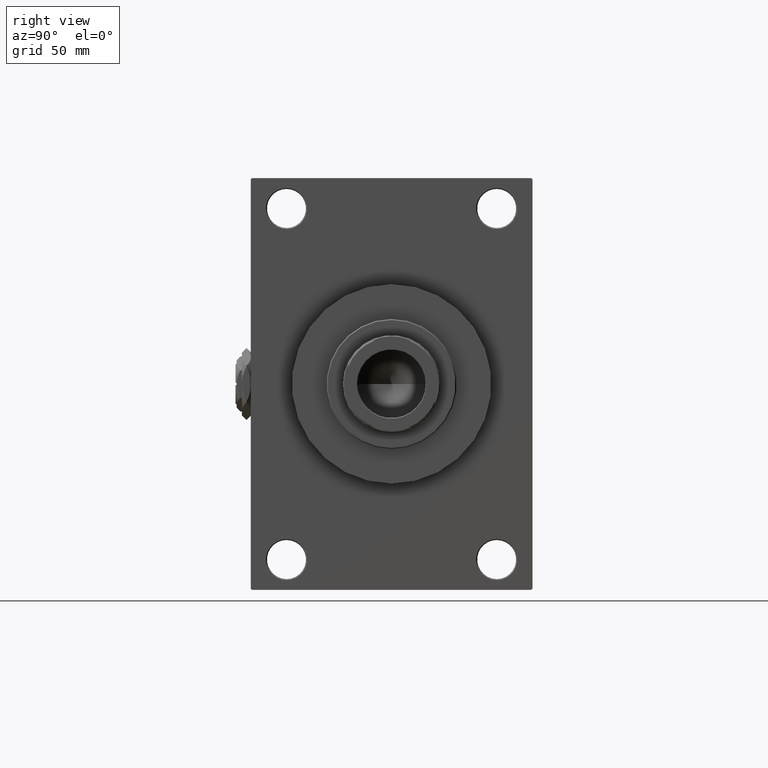
[diagram: clean part render]
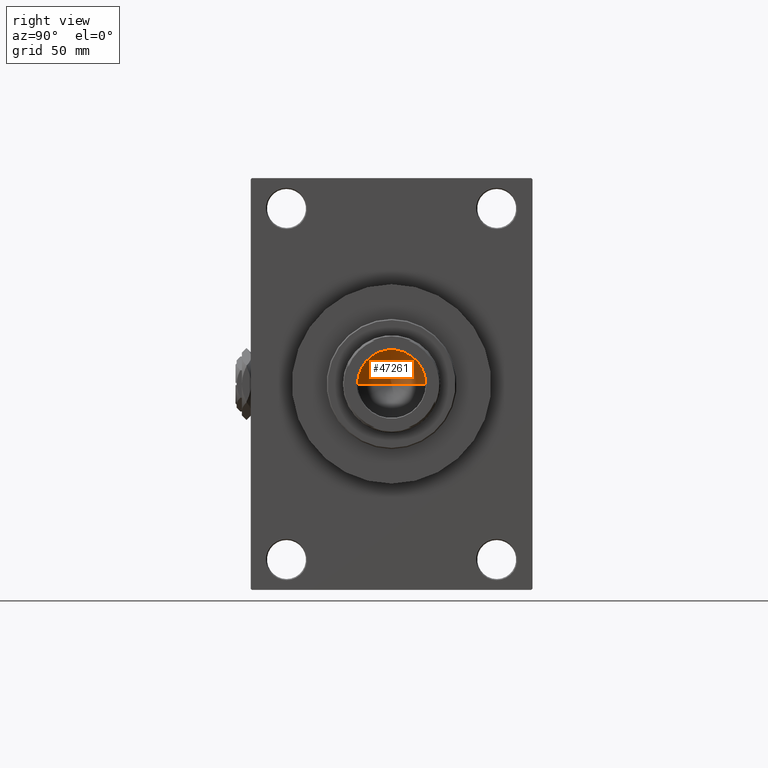
[diagram: same view with one face highlighted and labeled with its STEP entity id]
A machine part, right view. The second image highlights one B-rep face of the part: STEP entity #47261.
In plain terms, the highlighted conical surface has half-angle 59 deg.
Its self-contained STEP definition (entity closure, byte-faithful):
#1615 = EDGE_LOOP ( 'NONE', ( #28888, #20837, #18765 ) ) ;
#2845 = EDGE_CURVE ( 'NONE', #31467, #12713, #7001, .T. ) ;
#7001 = CIRCLE ( 'NONE', #43161, 15.74999999999998934 ) ;
#8692 = DIRECTION ( 'NONE',  ( 0.8571673007021115565, 0.000000000000000000, 0.5150380749100554878 ) ) ;
#8941 = FACE_OUTER_BOUND ( 'NONE', #1615, .T. ) ;
#8978 = DIRECTION ( 'NONE',  ( -0.8571673007021115565, 1.049727191138617710E-16, 0.5150380749100554878 ) ) ;
#9298 = CARTESIAN_POINT ( 'NONE',  ( -1.584115414415908206E-14, 0.000000000000000000, 113.5364452503159214 ) ) ;
#12713 = VERTEX_POINT ( 'NONE', #16659 ) ;
#16659 = CARTESIAN_POINT ( 'NONE',  ( 15.74999999999998934, 0.000000000000000000, 123.0000000000000142 ) ) ;
#17031 = LINE ( 'NONE', #39708, #49136 ) ;
#18765 = ORIENTED_EDGE ( 'NONE', *, *, #2845, .T. ) ;
#20271 = CARTESIAN_POINT ( 'NONE',  ( 0.000000000000000000, 0.000000000000000000, 123.0000000000000142 ) ) ;
#20430 = DIRECTION ( 'NONE',  ( 1.000000000000000000, 0.000000000000000000, 0.000000000000000000 ) ) ;
#20837 = ORIENTED_EDGE ( 'NONE', *, *, #22537, .T. ) ;
#21663 = AXIS2_PLACEMENT_3D ( 'NONE', #20271, #43949, #24288 ) ;
#22537 = EDGE_CURVE ( 'NONE', #24197, #31467, #17031, .T. ) ;
#24197 = VERTEX_POINT ( 'NONE', #9298 ) ;
#24288 = DIRECTION ( 'NONE',  ( 1.000000000000000000, 0.000000000000000000, 0.000000000000000000 ) ) ;
#24950 = DIRECTION ( 'NONE',  ( -0.000000000000000000, -0.000000000000000000, 1.000000000000000000 ) ) ;
#27564 = LINE ( 'NONE', #46953, #45270 ) ;
#28888 = ORIENTED_EDGE ( 'NONE', *, *, #29156, .F. ) ;
#29156 = EDGE_CURVE ( 'NONE', #24197, #12713, #27564, .T. ) ;
#31467 = VERTEX_POINT ( 'NONE', #43245 ) ;
#36128 = CONICAL_SURFACE ( 'NONE', #21663, 15.74999999999998934, 1.029744258676652979 ) ;
#36557 = CARTESIAN_POINT ( 'NONE',  ( 0.000000000000000000, 0.000000000000000000, 123.0000000000000142 ) ) ;
#39708 = CARTESIAN_POINT ( 'NONE',  ( -15.74999999999998934, 1.928818708657080161E-15, 123.0000000000000142 ) ) ;
#43161 = AXIS2_PLACEMENT_3D ( 'NONE', #36557, #24950, #20430 ) ;
#43245 = CARTESIAN_POINT ( 'NONE',  ( -15.74999999999998934, 1.928818708657080161E-15, 123.0000000000000142 ) ) ;
#43949 = DIRECTION ( 'NONE',  ( -0.000000000000000000, -0.000000000000000000, 1.000000000000000000 ) ) ;
#45270 = VECTOR ( 'NONE', #8692, 1000.000000000000000 ) ;
#46953 = CARTESIAN_POINT ( 'NONE',  ( 15.74999999999998934, 0.000000000000000000, 123.0000000000000142 ) ) ;
#47261 = ADVANCED_FACE ( 'NONE', ( #8941 ), #36128, .F. ) ;
#49136 = VECTOR ( 'NONE', #8978, 1000.000000000000000 ) ;